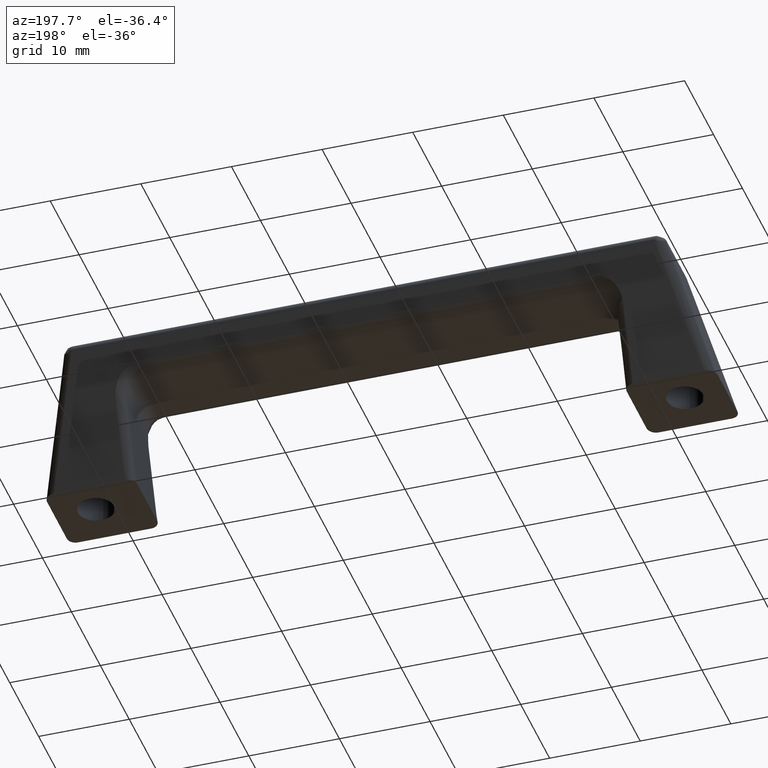
[diagram: clean part render]
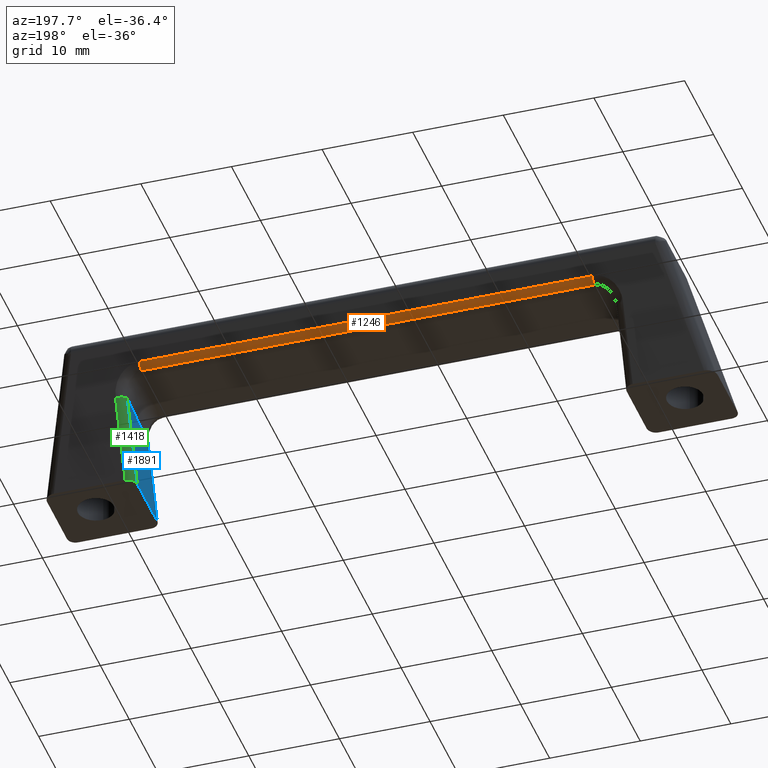
[diagram: same view with three faces highlighted in distinct colors, each labeled with its STEP entity id]
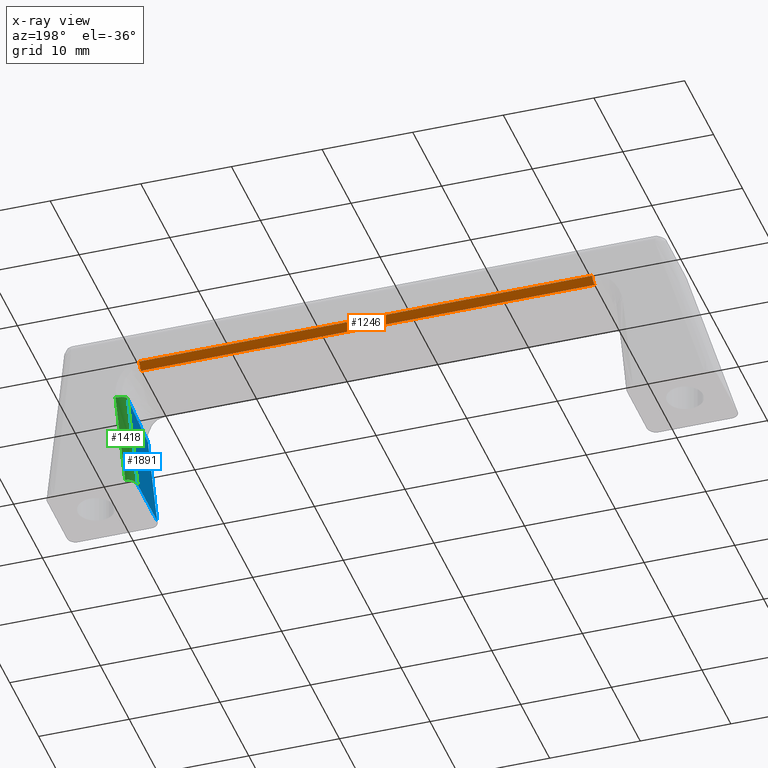
[diagram: x-ray of the same camera — body ghosted, the three highlighted faces saturated]
A machine part, auxiliary view with three faces highlighted in distinct colors.
The next image is the same camera in x-ray (body ghosted, the three faces saturated) — at least one of them is partly hidden behind the body in this view.
Their STEP definitions:

[orange] entity #1246 — the highlighted face is a freeform B-spline surface patch.
#1153=CARTESIAN_POINT('',(-25.0,13.623214323937241,11.559308020719200));
#1154=VERTEX_POINT('',#1153);
#1155=CARTESIAN_POINT('',(-25.0,12.800511884797841,10.936274789766060));
#1156=VERTEX_POINT('',#1155);
#1157=CARTESIAN_POINT('',(-25.0,13.623214323937241,11.559308020719200));
#1158=CARTESIAN_POINT('',(-25.000000000000007,13.399515738498826,10.999999999999996));
#1159=CARTESIAN_POINT('',(-25.0,12.800511884797841,10.936274789766060));
#1167=(BOUNDED_CURVE()B_SPLINE_CURVE(2,(#1157,#1158,#1159),.UNSPECIFIED.,.F.,.U.)CURVE()GEOMETRIC_REPRESENTATION_ITEM()QUASI_UNIFORM_CURVE()RATIONAL_B_SPLINE_CURVE((1.0,0.856590667962558,1.0))REPRESENTATION_ITEM(''));
#1168=EDGE_CURVE('',#1154,#1156,#1167,.T.);
#1202=CARTESIAN_POINT('',(26.250000000000000,12.759269171006460,10.932748702608929));
#1203=CARTESIAN_POINT('',(-26.281250000000011,12.759269171006460,10.932748702608929));
#1204=CARTESIAN_POINT('',(26.250000000000007,13.425395415683189,10.975834085805209));
#1205=CARTESIAN_POINT('',(-26.281250000000018,13.425395415683189,10.975834085805209));
#1206=CARTESIAN_POINT('',(26.250000000000004,13.641082335153019,11.607545789719213));
#1207=CARTESIAN_POINT('',(-26.281250000000014,13.641082335153019,11.607545789719213));
#1215=(BOUNDED_SURFACE()B_SPLINE_SURFACE(1,2,((#1202,#1204,#1206),(#1203,#1205,#1207)),.UNSPECIFIED.,.F.,.F.,.U.)B_SPLINE_SURFACE_WITH_KNOTS((2,2),(3,3),(0.0,52.531250000000007),(0.0,0.976181782214344),.UNSPECIFIED.)GEOMETRIC_REPRESENTATION_ITEM()RATIONAL_B_SPLINE_SURFACE(((1.0,0.828315189364210,0.991821547579575),(1.0,0.828315189364210,0.991821547579575)))REPRESENTATION_ITEM('')SURFACE());
#1216=CARTESIAN_POINT('',(25.0,13.623214323937241,11.559308020719200));
#1217=VERTEX_POINT('',#1216);
#1218=CARTESIAN_POINT('',(25.0,12.800511884797841,10.936274789766060));
#1219=VERTEX_POINT('',#1218);
#1220=CARTESIAN_POINT('',(25.0,13.623214323937241,11.559308020719200));
#1221=CARTESIAN_POINT('',(25.000000000000007,13.399515738498826,10.999999999999996));
#1222=CARTESIAN_POINT('',(25.0,12.800511884797841,10.936274789766060));
#1230=(BOUNDED_CURVE()B_SPLINE_CURVE(2,(#1220,#1221,#1222),.UNSPECIFIED.,.F.,.U.)CURVE()GEOMETRIC_REPRESENTATION_ITEM()QUASI_UNIFORM_CURVE()RATIONAL_B_SPLINE_CURVE((1.0,0.856590667962558,1.0))REPRESENTATION_ITEM(''));
#1231=EDGE_CURVE('',#1217,#1219,#1230,.T.);
#1232=ORIENTED_EDGE('',*,*,#1231,.T.);
#1233=CARTESIAN_POINT('',(-25.0,12.800511884797841,10.936274789766060));
#1234=CARTESIAN_POINT('',(25.0,12.800511884797841,10.936274789766060));
#1235=QUASI_UNIFORM_CURVE('',1,(#1233,#1234),.UNSPECIFIED.,.F.,.U.);
#1236=EDGE_CURVE('',#1156,#1219,#1235,.T.);
#1237=ORIENTED_EDGE('',*,*,#1236,.F.);
#1238=ORIENTED_EDGE('',*,*,#1168,.F.);
#1239=CARTESIAN_POINT('',(25.0,13.623214323937241,11.559308020719200));
#1240=CARTESIAN_POINT('',(-25.0,13.623214323937241,11.559308020719200));
#1241=QUASI_UNIFORM_CURVE('',1,(#1239,#1240),.UNSPECIFIED.,.F.,.U.);
#1242=EDGE_CURVE('',#1217,#1154,#1241,.T.);
#1243=ORIENTED_EDGE('',*,*,#1242,.F.);
#1244=EDGE_LOOP('',(#1232,#1237,#1238,#1243));
#1245=FACE_OUTER_BOUND('',#1244,.T.);
#1246=ADVANCED_FACE('',(#1245),#1215,.T.);

[blue] entity #1891 — the highlighted face is a freeform B-spline surface patch.
#703=CARTESIAN_POINT('',(27.0,1.077022624511036,0.0));
#704=VERTEX_POINT('',#703);
#725=CARTESIAN_POINT('',(27.0,4.284399233375626,8.018999520875271));
#726=VERTEX_POINT('',#725);
#740=CARTESIAN_POINT('',(27.0,1.077022624511036,0.0));
#741=CARTESIAN_POINT('',(27.0,4.284399233375626,8.018999520875271));
#742=QUASI_UNIFORM_CURVE('',1,(#740,#741),.UNSPECIFIED.,.F.,.U.);
#743=EDGE_CURVE('',#704,#726,#742,.T.);
#1327=CARTESIAN_POINT('',(27.0,11.434461308442740,8.779661086079120));
#1328=VERTEX_POINT('',#1327);
#1386=CARTESIAN_POINT('',(27.0,7.922983387816390,0.0));
#1387=VERTEX_POINT('',#1386);
#1405=CARTESIAN_POINT('',(27.0,11.434461308442740,8.779661086079120));
#1406=CARTESIAN_POINT('',(27.0,7.922983387816390,0.0));
#1407=QUASI_UNIFORM_CURVE('',1,(#1405,#1406),.UNSPECIFIED.,.F.,.U.);
#1408=EDGE_CURVE('',#1328,#1387,#1407,.T.);
#1813=CARTESIAN_POINT('',(27.0,4.284399233375626,8.018999520875271));
#1814=CARTESIAN_POINT('',(27.0,11.434461308442740,8.779661086079120));
#1815=QUASI_UNIFORM_CURVE('',1,(#1813,#1814),.UNSPECIFIED.,.F.,.U.);
#1816=EDGE_CURVE('',#726,#1328,#1815,.T.);
#1876=CARTESIAN_POINT('',(27.0,0.559668582323374,9.218205305146437));
#1877=CARTESIAN_POINT('',(27.0,0.559668582323374,-0.438544297563605));
#1878=CARTESIAN_POINT('',(27.0,11.951815628438560,9.218205305146437));
#1879=CARTESIAN_POINT('',(27.0,11.951815628438560,-0.438544297563605));
#1880=B_SPLINE_SURFACE_WITH_KNOTS('',1,1,((#1876,#1878),(#1877,#1879)),.UNSPECIFIED.,.F.,.F.,.U.,(2,2),(2,2),(0.0,9.656749602710042),(0.0,11.392147046115181),.UNSPECIFIED.);
#1881=ORIENTED_EDGE('',*,*,#1816,.T.);
#1882=ORIENTED_EDGE('',*,*,#1408,.T.);
#1883=CARTESIAN_POINT('',(27.0,7.922983387816390,0.0));
#1884=CARTESIAN_POINT('',(27.0,1.077022624511036,0.0));
#1885=QUASI_UNIFORM_CURVE('',1,(#1883,#1884),.UNSPECIFIED.,.F.,.U.);
#1886=EDGE_CURVE('',#1387,#704,#1885,.T.);
#1887=ORIENTED_EDGE('',*,*,#1886,.T.);
#1888=ORIENTED_EDGE('',*,*,#743,.T.);
#1889=EDGE_LOOP('',(#1881,#1882,#1887,#1888));
#1890=FACE_OUTER_BOUND('',#1889,.T.);
#1891=ADVANCED_FACE('',(#1890),#1880,.F.);

[green] entity #1418 — the highlighted face is a freeform B-spline surface patch.
#1325=CARTESIAN_POINT('',(28.0,12.362952093717000,8.408305647636810));
#1326=VERTEX_POINT('',#1325);
#1327=CARTESIAN_POINT('',(27.0,11.434461308442740,8.779661086079120));
#1328=VERTEX_POINT('',#1327);
#1329=CARTESIAN_POINT('',(28.0,12.362952093716981,8.408305647636812));
#1330=CARTESIAN_POINT('',(27.000000000000011,12.362952093716979,8.408305647636812));
#1331=CARTESIAN_POINT('',(27.0,11.434461308442740,8.779661086079120));
#1339=(BOUNDED_CURVE()B_SPLINE_CURVE(2,(#1329,#1330,#1331),.UNSPECIFIED.,.F.,.U.)CURVE()GEOMETRIC_REPRESENTATION_ITEM()QUASI_UNIFORM_CURVE()RATIONAL_B_SPLINE_CURVE((1.0,0.707106781186548,1.0))REPRESENTATION_ITEM(''));
#1340=EDGE_CURVE('',#1326,#1328,#1339,.T.);
#1372=CARTESIAN_POINT('',(28.026176948307871,12.450420871130170,8.627924429022741));
#1373=CARTESIAN_POINT('',(28.026176948307871,8.761174380772101,-0.596206999539135));
#1374=CARTESIAN_POINT('',(26.954175712257104,12.476484851919084,8.617499984141947));
#1375=CARTESIAN_POINT('',(26.954175712257118,8.787238361561011,-0.606631444419930));
#1376=CARTESIAN_POINT('',(27.000951778418131,11.481748057230361,9.015350909950751));
#1377=CARTESIAN_POINT('',(27.000951778418141,7.792501566872293,-0.208780518611131));
#1385=(BOUNDED_SURFACE()B_SPLINE_SURFACE(1,2,((#1372,#1374,#1376),(#1373,#1375,#1377)),.UNSPECIFIED.,.F.,.F.,.U.)B_SPLINE_SURFACE_WITH_KNOTS((2,2),(3,3),(0.0,9.934542781527613),(0.0,1.0),.UNSPECIFIED.)GEOMETRIC_REPRESENTATION_ITEM()RATIONAL_B_SPLINE_SURFACE(((1.0,0.681998360062498,1.0),(1.0,0.681998360062498,1.0)))REPRESENTATION_ITEM('')SURFACE());
#1386=CARTESIAN_POINT('',(27.0,7.922983387816390,0.0));
#1387=VERTEX_POINT('',#1386);
#1388=CARTESIAN_POINT('',(28.0,9.0,0.0));
#1389=VERTEX_POINT('',#1388);
#1390=CARTESIAN_POINT('',(27.0,7.922983387816410,0.0));
#1391=CARTESIAN_POINT('',(26.999999999999996,8.369098461558339,0.0));
#1392=CARTESIAN_POINT('',(27.292893427363211,8.684549362353604,0.0));
#1393=CARTESIAN_POINT('',(27.585786854726415,9.000000263148868,0.0));
#1394=CARTESIAN_POINT('',(28.0,9.0,0.0));
#1402=(BOUNDED_CURVE()B_SPLINE_CURVE(2,(#1390,#1391,#1392,#1393,#1394),.UNSPECIFIED.,.F.,.U.)B_SPLINE_CURVE_WITH_KNOTS((3,2,3),(0.0,0.500000000000000,1.0),.UNSPECIFIED.)CURVE()GEOMETRIC_REPRESENTATION_ITEM()RATIONAL_B_SPLINE_CURVE((1.0,0.923879476078128,1.0,0.923879476078128,1.0))REPRESENTATION_ITEM(''));
#1403=EDGE_CURVE('',#1387,#1389,#1402,.T.);
#1404=ORIENTED_EDGE('',*,*,#1403,.F.);
#1405=CARTESIAN_POINT('',(27.0,11.434461308442740,8.779661086079120));
#1406=CARTESIAN_POINT('',(27.0,7.922983387816390,0.0));
#1407=QUASI_UNIFORM_CURVE('',1,(#1405,#1406),.UNSPECIFIED.,.F.,.U.);
#1408=EDGE_CURVE('',#1328,#1387,#1407,.T.);
#1409=ORIENTED_EDGE('',*,*,#1408,.F.);
#1410=ORIENTED_EDGE('',*,*,#1340,.F.);
#1411=CARTESIAN_POINT('',(28.0,9.0,0.0));
#1412=CARTESIAN_POINT('',(28.0,12.362952093717000,8.408305647636810));
#1413=QUASI_UNIFORM_CURVE('',1,(#1411,#1412),.UNSPECIFIED.,.F.,.U.);
#1414=EDGE_CURVE('',#1389,#1326,#1413,.T.);
#1415=ORIENTED_EDGE('',*,*,#1414,.F.);
#1416=EDGE_LOOP('',(#1404,#1409,#1410,#1415));
#1417=FACE_OUTER_BOUND('',#1416,.T.);
#1418=ADVANCED_FACE('',(#1417),#1385,.T.);